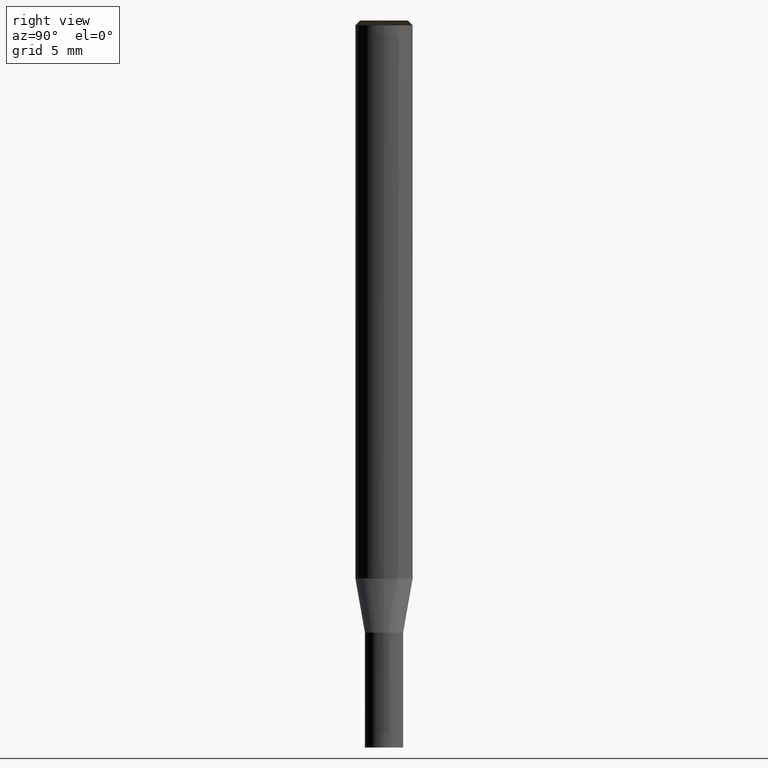
[diagram: clean part render]
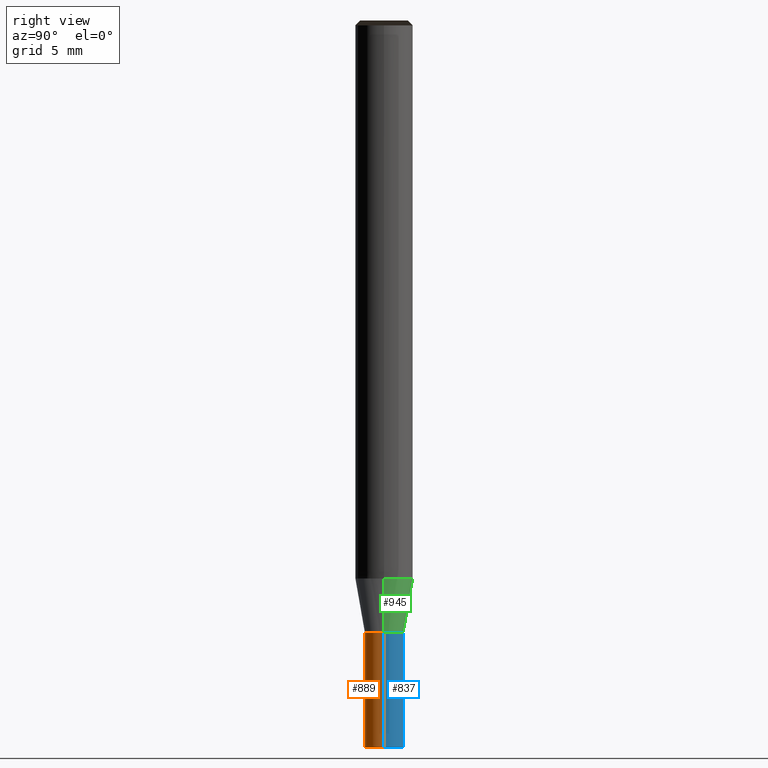
[diagram: same view with three faces highlighted in distinct colors, each labeled with its STEP entity id]
A machine part, right view with three faces highlighted in distinct colors.
Their STEP definitions:

[orange] entity #889 — the highlighted face is a freeform B-spline surface patch.
#745=CARTESIAN_POINT('',(1.0,0.0,-9.2));
#749=CARTESIAN_POINT('',(-1.0,0.0,-9.2));
#750=CARTESIAN_POINT('',(1.0,0.0,-3.2));
#754=CARTESIAN_POINT('',(-1.0,0.0,-3.2));
#756=CARTESIAN_POINT('',(-1.0,-1.0,-9.2));
#757=CARTESIAN_POINT('',(0.0,-1.0,-9.2));
#758=CARTESIAN_POINT('',(1.0,-1.0,-9.2));
#759=CARTESIAN_POINT('',(-1.0,-1.0,-3.2));
#760=CARTESIAN_POINT('',(0.0,-1.0,-3.2));
#761=CARTESIAN_POINT('',(1.0,-1.0,-3.2));
#870=(
BOUNDED_SURFACE()
B_SPLINE_SURFACE(1,2,(
(#749,#756,#757,#758,#745),
(#754,#759,#760,#761,#750)
), .UNSPECIFIED.,.F.,.F.,.F.)
B_SPLINE_SURFACE_WITH_KNOTS((2,2),(3,2,3),(
0.0,1.0),(
0.0,0.5,1.0), .UNSPECIFIED.)
GEOMETRIC_REPRESENTATION_ITEM()
RATIONAL_B_SPLINE_SURFACE(((1.0,0.707106781187,1.0,0.707106781187,1.0),
(1.0,0.707106781187,1.0,0.707106781187,1.0)
))
REPRESENTATION_ITEM('')
SURFACE()
);
#871=(
BOUNDED_CURVE()
B_SPLINE_CURVE(2,(#745,#758,#757,#756,#749),.UNSPECIFIED.,.F.,.F.)
B_SPLINE_CURVE_WITH_KNOTS((3,2,3),
(0.0,0.5,1.0),.UNSPECIFIED.)
CURVE()
GEOMETRIC_REPRESENTATION_ITEM()
RATIONAL_B_SPLINE_CURVE((1.0,0.707106781187,1.0,0.707106781187,1.0))
REPRESENTATION_ITEM('')
);
#872=(
BOUNDED_CURVE()
B_SPLINE_CURVE(1,(#749,#754),.UNSPECIFIED.,.F.,.F.)
B_SPLINE_CURVE_WITH_KNOTS((2,2),
(0.0,1.0),.UNSPECIFIED.)
CURVE()
GEOMETRIC_REPRESENTATION_ITEM()
RATIONAL_B_SPLINE_CURVE((1.0,1.0))
REPRESENTATION_ITEM('')
);
#873=(
BOUNDED_CURVE()
B_SPLINE_CURVE(2,(#754,#759,#760,#761,#750),.UNSPECIFIED.,.F.,.F.)
B_SPLINE_CURVE_WITH_KNOTS((3,2,3),
(0.0,0.5,1.0),.UNSPECIFIED.)
CURVE()
GEOMETRIC_REPRESENTATION_ITEM()
RATIONAL_B_SPLINE_CURVE((1.0,0.707106781187,1.0,0.707106781187,1.0))
REPRESENTATION_ITEM('')
);
#874=(
BOUNDED_CURVE()
B_SPLINE_CURVE(1,(#750,#745),.UNSPECIFIED.,.F.,.F.)
B_SPLINE_CURVE_WITH_KNOTS((2,2),
(0.0,1.0),.UNSPECIFIED.)
CURVE()
GEOMETRIC_REPRESENTATION_ITEM()
RATIONAL_B_SPLINE_CURVE((1.0,1.0))
REPRESENTATION_ITEM('')
);
#875=VERTEX_POINT('',#745);
#876=VERTEX_POINT('',#749);
#877=VERTEX_POINT('',#750);
#878=VERTEX_POINT('',#754);
#879=EDGE_CURVE('',#875,#876,#871,.T.);
#880=EDGE_CURVE('',#876,#878,#872,.T.);
#881=EDGE_CURVE('',#878,#877,#873,.T.);
#882=EDGE_CURVE('',#877,#875,#874,.T.);
#883=ORIENTED_EDGE('',*,*,#879,.T.);
#884=ORIENTED_EDGE('',*,*,#880,.T.);
#885=ORIENTED_EDGE('',*,*,#881,.T.);
#886=ORIENTED_EDGE('',*,*,#882,.T.);
#887=EDGE_LOOP('',(#883,#884,#885,#886));
#888=FACE_OUTER_BOUND('',#887,.T.);
#889=ADVANCED_FACE('',(#888),#870,.T.);

[blue] entity #837 — the highlighted face is a freeform B-spline surface patch.
#745=CARTESIAN_POINT('',(1.0,0.0,-9.2));
#746=CARTESIAN_POINT('',(1.0,1.0,-9.2));
#747=CARTESIAN_POINT('',(0.0,1.0,-9.2));
#748=CARTESIAN_POINT('',(-1.0,1.0,-9.2));
#749=CARTESIAN_POINT('',(-1.0,0.0,-9.2));
#750=CARTESIAN_POINT('',(1.0,0.0,-3.2));
#751=CARTESIAN_POINT('',(1.0,1.0,-3.2));
#752=CARTESIAN_POINT('',(0.0,1.0,-3.2));
#753=CARTESIAN_POINT('',(-1.0,1.0,-3.2));
#754=CARTESIAN_POINT('',(-1.0,0.0,-3.2));
#818=(
BOUNDED_SURFACE()
B_SPLINE_SURFACE(1,2,(
(#745,#746,#747,#748,#749),
(#750,#751,#752,#753,#754)
), .UNSPECIFIED.,.F.,.F.,.F.)
B_SPLINE_SURFACE_WITH_KNOTS((2,2),(3,2,3),(
0.0,1.0),(
0.0,0.5,1.0), .UNSPECIFIED.)
GEOMETRIC_REPRESENTATION_ITEM()
RATIONAL_B_SPLINE_SURFACE(((1.0,0.707106781187,1.0,0.707106781187,1.0),
(1.0,0.707106781187,1.0,0.707106781187,1.0)
))
REPRESENTATION_ITEM('')
SURFACE()
);
#819=(
BOUNDED_CURVE()
B_SPLINE_CURVE(2,(#749,#748,#747,#746,#745),.UNSPECIFIED.,.F.,.F.)
B_SPLINE_CURVE_WITH_KNOTS((3,2,3),
(0.0,0.5,1.0),.UNSPECIFIED.)
CURVE()
GEOMETRIC_REPRESENTATION_ITEM()
RATIONAL_B_SPLINE_CURVE((1.0,0.707106781187,1.0,0.707106781187,1.0))
REPRESENTATION_ITEM('')
);
#820=(
BOUNDED_CURVE()
B_SPLINE_CURVE(1,(#745,#750),.UNSPECIFIED.,.F.,.F.)
B_SPLINE_CURVE_WITH_KNOTS((2,2),
(0.0,1.0),.UNSPECIFIED.)
CURVE()
GEOMETRIC_REPRESENTATION_ITEM()
RATIONAL_B_SPLINE_CURVE((1.0,1.0))
REPRESENTATION_ITEM('')
);
#821=(
BOUNDED_CURVE()
B_SPLINE_CURVE(2,(#750,#751,#752,#753,#754),.UNSPECIFIED.,.F.,.F.)
B_SPLINE_CURVE_WITH_KNOTS((3,2,3),
(0.0,0.5,1.0),.UNSPECIFIED.)
CURVE()
GEOMETRIC_REPRESENTATION_ITEM()
RATIONAL_B_SPLINE_CURVE((1.0,0.707106781187,1.0,0.707106781187,1.0))
REPRESENTATION_ITEM('')
);
#822=(
BOUNDED_CURVE()
B_SPLINE_CURVE(1,(#754,#749),.UNSPECIFIED.,.F.,.F.)
B_SPLINE_CURVE_WITH_KNOTS((2,2),
(0.0,1.0),.UNSPECIFIED.)
CURVE()
GEOMETRIC_REPRESENTATION_ITEM()
RATIONAL_B_SPLINE_CURVE((1.0,1.0))
REPRESENTATION_ITEM('')
);
#823=VERTEX_POINT('',#745);
#824=VERTEX_POINT('',#749);
#825=VERTEX_POINT('',#750);
#826=VERTEX_POINT('',#754);
#827=EDGE_CURVE('',#824,#823,#819,.T.);
#828=EDGE_CURVE('',#823,#825,#820,.T.);
#829=EDGE_CURVE('',#825,#826,#821,.T.);
#830=EDGE_CURVE('',#826,#824,#822,.T.);
#831=ORIENTED_EDGE('',*,*,#827,.T.);
#832=ORIENTED_EDGE('',*,*,#828,.T.);
#833=ORIENTED_EDGE('',*,*,#829,.T.);
#834=ORIENTED_EDGE('',*,*,#830,.T.);
#835=EDGE_LOOP('',(#831,#832,#833,#834));
#836=FACE_OUTER_BOUND('',#835,.T.);
#837=ADVANCED_FACE('',(#836),#818,.T.);

[green] entity #945 — the highlighted face is a freeform B-spline surface patch.
#750=CARTESIAN_POINT('',(1.0,0.0,-3.2));
#751=CARTESIAN_POINT('',(1.0,1.0,-3.2));
#752=CARTESIAN_POINT('',(0.0,1.0,-3.2));
#753=CARTESIAN_POINT('',(-1.0,1.0,-3.2));
#754=CARTESIAN_POINT('',(-1.0,0.0,-3.2));
#762=CARTESIAN_POINT('',(1.5,0.0,-0.364359090191));
#763=CARTESIAN_POINT('',(1.5,1.5,-0.364359090191));
#764=CARTESIAN_POINT('',(0.0,1.5,-0.364359090191));
#765=CARTESIAN_POINT('',(-1.5,1.5,-0.364359090191));
#766=CARTESIAN_POINT('',(-1.5,0.0,-0.364359090191));
#926=(
BOUNDED_SURFACE()
B_SPLINE_SURFACE(1,2,(
(#750,#751,#752,#753,#754),
(#762,#763,#764,#765,#766)
), .UNSPECIFIED.,.F.,.F.,.F.)
B_SPLINE_SURFACE_WITH_KNOTS((2,2),(3,2,3),(
0.0,1.0),(
0.0,0.5,1.0), .UNSPECIFIED.)
GEOMETRIC_REPRESENTATION_ITEM()
RATIONAL_B_SPLINE_SURFACE(((1.0,0.707106781187,1.0,0.707106781187,1.0),
(1.0,0.707106781187,1.0,0.707106781187,1.0)
))
REPRESENTATION_ITEM('')
SURFACE()
);
#927=(
BOUNDED_CURVE()
B_SPLINE_CURVE(2,(#754,#753,#752,#751,#750),.UNSPECIFIED.,.F.,.F.)
B_SPLINE_CURVE_WITH_KNOTS((3,2,3),
(0.0,0.5,1.0),.UNSPECIFIED.)
CURVE()
GEOMETRIC_REPRESENTATION_ITEM()
RATIONAL_B_SPLINE_CURVE((1.0,0.707106781187,1.0,0.707106781187,1.0))
REPRESENTATION_ITEM('')
);
#928=(
BOUNDED_CURVE()
B_SPLINE_CURVE(1,(#750,#762),.UNSPECIFIED.,.F.,.F.)
B_SPLINE_CURVE_WITH_KNOTS((2,2),
(0.0,1.0),.UNSPECIFIED.)
CURVE()
GEOMETRIC_REPRESENTATION_ITEM()
RATIONAL_B_SPLINE_CURVE((1.0,1.0))
REPRESENTATION_ITEM('')
);
#929=(
BOUNDED_CURVE()
B_SPLINE_CURVE(2,(#762,#763,#764,#765,#766),.UNSPECIFIED.,.F.,.F.)
B_SPLINE_CURVE_WITH_KNOTS((3,2,3),
(0.0,0.5,1.0),.UNSPECIFIED.)
CURVE()
GEOMETRIC_REPRESENTATION_ITEM()
RATIONAL_B_SPLINE_CURVE((1.0,0.707106781187,1.0,0.707106781187,1.0))
REPRESENTATION_ITEM('')
);
#930=(
BOUNDED_CURVE()
B_SPLINE_CURVE(1,(#766,#754),.UNSPECIFIED.,.F.,.F.)
B_SPLINE_CURVE_WITH_KNOTS((2,2),
(0.0,1.0),.UNSPECIFIED.)
CURVE()
GEOMETRIC_REPRESENTATION_ITEM()
RATIONAL_B_SPLINE_CURVE((1.0,1.0))
REPRESENTATION_ITEM('')
);
#931=VERTEX_POINT('',#750);
#932=VERTEX_POINT('',#754);
#933=VERTEX_POINT('',#762);
#934=VERTEX_POINT('',#766);
#935=EDGE_CURVE('',#932,#931,#927,.T.);
#936=EDGE_CURVE('',#931,#933,#928,.T.);
#937=EDGE_CURVE('',#933,#934,#929,.T.);
#938=EDGE_CURVE('',#934,#932,#930,.T.);
#939=ORIENTED_EDGE('',*,*,#935,.T.);
#940=ORIENTED_EDGE('',*,*,#936,.T.);
#941=ORIENTED_EDGE('',*,*,#937,.T.);
#942=ORIENTED_EDGE('',*,*,#938,.T.);
#943=EDGE_LOOP('',(#939,#940,#941,#942));
#944=FACE_OUTER_BOUND('',#943,.T.);
#945=ADVANCED_FACE('',(#944),#926,.T.);